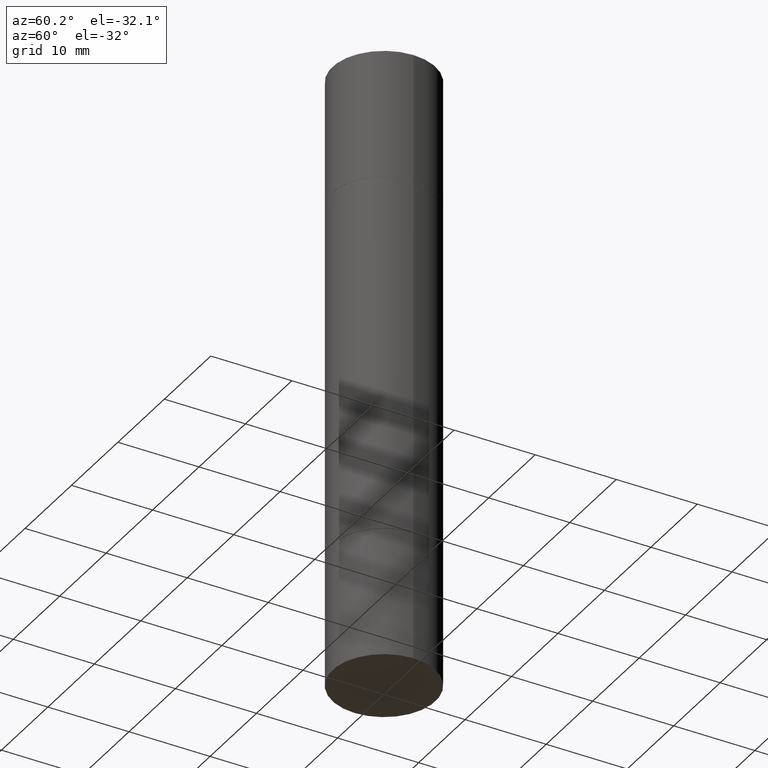
[diagram: clean part render]
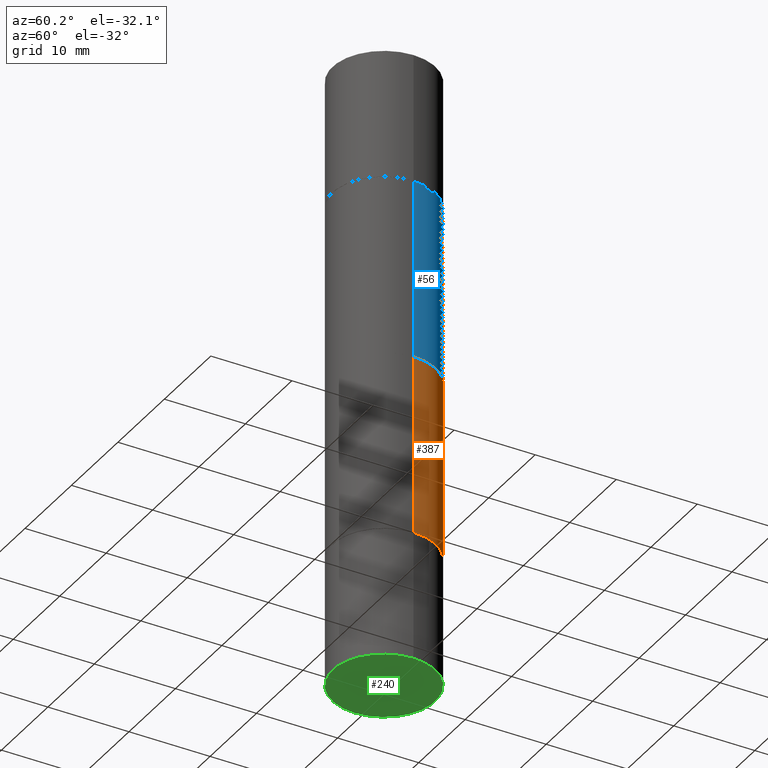
[diagram: same view with three faces highlighted in distinct colors, each labeled with its STEP entity id]
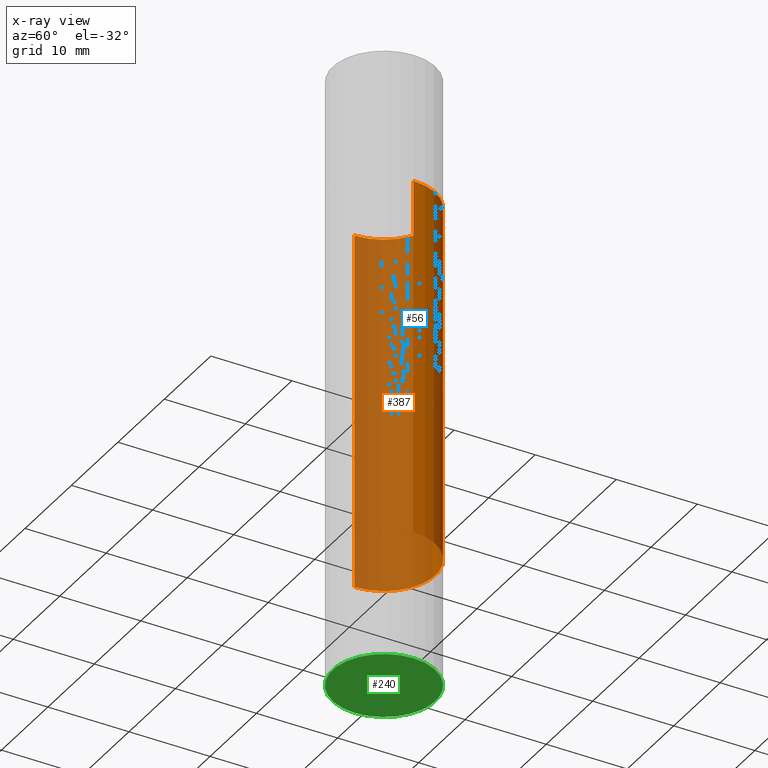
[diagram: x-ray of the same camera — body ghosted, the three highlighted faces saturated]
A machine part, auxiliary view with three faces highlighted in distinct colors.
The next image is the same camera in x-ray (body ghosted, the three faces saturated) — at least one of them is partly hidden behind the body in this view.
Their STEP definitions:

[orange] entity #387 — the highlighted cylindrical surface (partial cylindrical patch) has radius 6.35 mm, axis along (-0, -0, -1).
#33 = EDGE_CURVE ( 'NONE', #172, #618, #635, .T. ) ;
#44 = CARTESIAN_POINT ( 'NONE',  ( 0.000000000000000000, -1.047655762559234344E-14, -2.999999999999999112 ) ) ;
#48 = FACE_OUTER_BOUND ( 'NONE', #160, .T. ) ;
#80 = DIRECTION ( 'NONE',  ( -2.445468806185136877E-29, -3.492890411551753071E-15, -1.000000000000000000 ) ) ;
#113 = ORIENTED_EDGE ( 'NONE', *, *, #33, .F. ) ;
#130 = CARTESIAN_POINT ( 'NONE',  ( -0.2500000000000000000, -4.693112891255996450E-16, -0.6259999999999990017 ) ) ;
#143 = VERTEX_POINT ( 'NONE', #541 ) ;
#160 = EDGE_LOOP ( 'NONE', ( #113, #403, #468, #253 ) ) ;
#164 = CARTESIAN_POINT ( 'NONE',  ( 5.805542945883514935E-29, -8.288776698413628688E-15, -2.374000000000000110 ) ) ;
#172 = VERTEX_POINT ( 'NONE', #130 ) ;
#198 = CARTESIAN_POINT ( 'NONE',  ( 0.2500000000000000000, -1.003451736783519537E-14, -2.374000000000000110 ) ) ;
#225 = EDGE_CURVE ( 'NONE', #143, #172, #561, .T. ) ;
#253 = ORIENTED_EDGE ( 'NONE', *, *, #413, .T. ) ;
#256 = DIRECTION ( 'NONE',  ( -2.445468806185136877E-29, -3.492890411551753071E-15, -1.000000000000000000 ) ) ;
#347 = AXIS2_PLACEMENT_3D ( 'NONE', #164, #507, #348 ) ;
#348 = DIRECTION ( 'NONE',  ( 1.000000000000000000, -6.982962677686266711E-15, 0.000000000000000000 ) ) ;
#361 = CYLINDRICAL_SURFACE ( 'NONE', #645, 0.2499999999999998335 ) ;
#370 = DIRECTION ( 'NONE',  ( 2.445468806185136597E-29, 3.492890411551752677E-15, 1.000000000000000000 ) ) ;
#371 = AXIS2_PLACEMENT_3D ( 'NONE', #551, #370, #438 ) ;
#387 = ADVANCED_FACE ( 'NONE', ( #48 ), #361, .T. ) ;
#390 = VECTOR ( 'NONE', #256, 39.37007874015748143 ) ;
#403 = ORIENTED_EDGE ( 'NONE', *, *, #225, .F. ) ;
#413 = EDGE_CURVE ( 'NONE', #444, #618, #665, .T. ) ;
#438 = DIRECTION ( 'NONE',  ( 1.000000000000000000, -6.982962677686266711E-15, 0.000000000000000000 ) ) ;
#444 = VERTEX_POINT ( 'NONE', #198 ) ;
#447 = VECTOR ( 'NONE', #80, 39.37007874015748143 ) ;
#468 = ORIENTED_EDGE ( 'NONE', *, *, #634, .T. ) ;
#507 = DIRECTION ( 'NONE',  ( -2.445468806185136597E-29, 3.491481338843145583E-15, 1.000000000000000000 ) ) ;
#541 = CARTESIAN_POINT ( 'NONE',  ( 0.2500000000000000000, -3.930176457990049608E-15, -0.6259999999999990017 ) ) ;
#546 = LINE ( 'NONE', #550, #447 ) ;
#550 = CARTESIAN_POINT ( 'NONE',  ( 0.2499999999999998335, -1.222229829501391012E-14, -2.999999999999999112 ) ) ;
#551 = CARTESIAN_POINT ( 'NONE',  ( 5.805542945883514935E-29, -2.184435788568482141E-15, -0.6259999999999990017 ) ) ;
#561 = CIRCLE ( 'NONE', #371, 0.2500000000000000000 ) ;
#598 = CARTESIAN_POINT ( 'NONE',  ( -0.2500000000000000000, -3.522097508821832131E-15, -2.374000000000000110 ) ) ;
#618 = VERTEX_POINT ( 'NONE', #598 ) ;
#620 = DIRECTION ( 'NONE',  ( -2.445468806185136597E-29, -3.492890411551752677E-15, -1.000000000000000000 ) ) ;
#622 = CARTESIAN_POINT ( 'NONE',  ( -0.2499999999999998335, -8.761433126149462132E-15, -2.999999999999999112 ) ) ;
#634 = EDGE_CURVE ( 'NONE', #143, #444, #546, .T. ) ;
#635 = LINE ( 'NONE', #622, #390 ) ;
#645 = AXIS2_PLACEMENT_3D ( 'NONE', #44, #620, #667 ) ;
#665 = CIRCLE ( 'NONE', #347, 0.2500000000000000000 ) ;
#667 = DIRECTION ( 'NONE',  ( 1.000000000000000000, -6.982962677686267499E-15, 0.000000000000000000 ) ) ;

[blue] entity #56 — the highlighted cylindrical surface (partial cylindrical patch) has radius 6.35 mm, axis along (-0, -0, -1).
#10 = VERTEX_POINT ( 'NONE', #579 ) ;
#19 = AXIS2_PLACEMENT_3D ( 'NONE', #22, #537, #76 ) ;
#22 = CARTESIAN_POINT ( 'NONE',  ( 3.668203209277703774E-29, -5.237222008264716599E-15, -1.499999999999999556 ) ) ;
#29 = EDGE_CURVE ( 'NONE', #651, #342, #630, .T. ) ;
#56 = ADVANCED_FACE ( 'NONE', ( #459 ), #166, .T. ) ;
#76 = DIRECTION ( 'NONE',  ( 0.000000000000000000, 1.000000000000000000, -3.278217592397118229E-15 ) ) ;
#151 = CARTESIAN_POINT ( 'NONE',  ( 5.805542945883514935E-29, -2.184435788568482141E-15, -0.6259999999999990017 ) ) ;
#159 = EDGE_LOOP ( 'NONE', ( #615, #640, #300, #358 ) ) ;
#166 = CYLINDRICAL_SURFACE ( 'NONE', #662, 0.2499999999999998335 ) ;
#243 = AXIS2_PLACEMENT_3D ( 'NONE', #151, #414, #458 ) ;
#269 = EDGE_CURVE ( 'NONE', #463, #10, #498, .T. ) ;
#298 = CARTESIAN_POINT ( 'NONE',  ( 0.2500000000000000000, -3.930176457990049608E-15, -0.6259999999999990017 ) ) ;
#300 = ORIENTED_EDGE ( 'NONE', *, *, #269, .T. ) ;
#308 = DIRECTION ( 'NONE',  ( -2.445468806185136597E-29, -3.492890411551752677E-15, -1.000000000000000000 ) ) ;
#333 = EDGE_CURVE ( 'NONE', #463, #651, #542, .T. ) ;
#342 = VERTEX_POINT ( 'NONE', #462 ) ;
#357 = DIRECTION ( 'NONE',  ( -2.445468806185136877E-29, -3.492890411551753071E-15, -1.000000000000000000 ) ) ;
#358 = ORIENTED_EDGE ( 'NONE', *, *, #505, .F. ) ;
#384 = CARTESIAN_POINT ( 'NONE',  ( -0.2500000000000000000, -4.693112891255996450E-16, -0.6259999999999990017 ) ) ;
#402 = CARTESIAN_POINT ( 'NONE',  ( -0.2499999999999998335, -8.761433126149462132E-15, -2.999999999999999112 ) ) ;
#414 = DIRECTION ( 'NONE',  ( 2.445468806185136597E-29, 3.492890411551752677E-15, 1.000000000000000000 ) ) ;
#427 = CIRCLE ( 'NONE', #19, 0.2499999999999998335 ) ;
#458 = DIRECTION ( 'NONE',  ( 1.000000000000000000, -6.982962677686266711E-15, 0.000000000000000000 ) ) ;
#459 = FACE_OUTER_BOUND ( 'NONE', #159, .T. ) ;
#462 = CARTESIAN_POINT ( 'NONE',  ( -0.2499999999999998335, -1.995704398973716874E-15, -1.499999999999999556 ) ) ;
#463 = VERTEX_POINT ( 'NONE', #298 ) ;
#484 = VECTOR ( 'NONE', #493, 39.37007874015748143 ) ;
#493 = DIRECTION ( 'NONE',  ( -2.445468806185136877E-29, -3.492890411551753071E-15, -1.000000000000000000 ) ) ;
#498 = LINE ( 'NONE', #661, #484 ) ;
#505 = EDGE_CURVE ( 'NONE', #342, #10, #427, .T. ) ;
#520 = DIRECTION ( 'NONE',  ( 1.000000000000000000, -6.982962677686267499E-15, 0.000000000000000000 ) ) ;
#537 = DIRECTION ( 'NONE',  ( -0.000000000000000000, -3.492185875197449130E-15, -1.000000000000000000 ) ) ;
#542 = CIRCLE ( 'NONE', #243, 0.2500000000000000000 ) ;
#579 = CARTESIAN_POINT ( 'NONE',  ( 0.2499999999999998335, -5.456569567838164864E-15, -1.499999999999999556 ) ) ;
#615 = ORIENTED_EDGE ( 'NONE', *, *, #29, .F. ) ;
#630 = LINE ( 'NONE', #402, #654 ) ;
#640 = ORIENTED_EDGE ( 'NONE', *, *, #333, .F. ) ;
#651 = VERTEX_POINT ( 'NONE', #384 ) ;
#654 = VECTOR ( 'NONE', #357, 39.37007874015748143 ) ;
#661 = CARTESIAN_POINT ( 'NONE',  ( 0.2499999999999998335, -1.222229829501391012E-14, -2.999999999999999112 ) ) ;
#662 = AXIS2_PLACEMENT_3D ( 'NONE', #675, #308, #520 ) ;
#675 = CARTESIAN_POINT ( 'NONE',  ( 0.000000000000000000, -1.047655762559234344E-14, -2.999999999999999112 ) ) ;

[green] entity #240 — the highlighted planar face has unit normal (0, -0, -1).
#43 = EDGE_CURVE ( 'NONE', #219, #55, #285, .T. ) ;
#55 = VERTEX_POINT ( 'NONE', #299 ) ;
#86 = AXIS2_PLACEMENT_3D ( 'NONE', #260, #471, #188 ) ;
#117 = DIRECTION ( 'NONE',  ( 1.000000000000000000, -6.982962677686262766E-15, 0.000000000000000000 ) ) ;
#123 = EDGE_CURVE ( 'NONE', #55, #219, #470, .T. ) ;
#157 = CARTESIAN_POINT ( 'NONE',  ( 7.336406418555409790E-29, -1.047444401652943635E-14, -3.000000000000000444 ) ) ;
#161 = AXIS2_PLACEMENT_3D ( 'NONE', #376, #589, #585 ) ;
#177 = PLANE ( 'NONE',  #161 ) ;
#188 = DIRECTION ( 'NONE',  ( 1.000000000000000000, -6.982962677686262766E-15, 0.000000000000000000 ) ) ;
#210 = EDGE_LOOP ( 'NONE', ( #517, #593 ) ) ;
#219 = VERTEX_POINT ( 'NONE', #423 ) ;
#240 = ADVANCED_FACE ( 'NONE', ( #478 ), #177, .T. ) ;
#260 = CARTESIAN_POINT ( 'NONE',  ( 7.336406418555409790E-29, -1.047444401652943635E-14, -3.000000000000000444 ) ) ;
#285 = CIRCLE ( 'NONE', #337, 0.2500000000000000000 ) ;
#299 = CARTESIAN_POINT ( 'NONE',  ( -0.2500000000000000000, -7.606999258740704349E-15, -3.000000000000000444 ) ) ;
#337 = AXIS2_PLACEMENT_3D ( 'NONE', #157, #406, #117 ) ;
#376 = CARTESIAN_POINT ( 'NONE',  ( 1.745740669421639647E-15, 0.2499999999999895084, -3.000000000000001332 ) ) ;
#406 = DIRECTION ( 'NONE',  ( -2.445468806185136597E-29, 3.491481338843145583E-15, 1.000000000000000000 ) ) ;
#423 = CARTESIAN_POINT ( 'NONE',  ( 0.2500000000000000000, -1.222018468595100303E-14, -3.000000000000000444 ) ) ;
#470 = CIRCLE ( 'NONE', #86, 0.2500000000000000000 ) ;
#471 = DIRECTION ( 'NONE',  ( -2.445468806185136597E-29, 3.491481338843145583E-15, 1.000000000000000000 ) ) ;
#478 = FACE_OUTER_BOUND ( 'NONE', #210, .T. ) ;
#517 = ORIENTED_EDGE ( 'NONE', *, *, #43, .F. ) ;
#585 = DIRECTION ( 'NONE',  ( -1.000000000000000000, 6.982962677686265922E-15, -4.876176775795935793E-29 ) ) ;
#589 = DIRECTION ( 'NONE',  ( 2.438088387897960049E-29, -3.491481338843145188E-15, -1.000000000000000000 ) ) ;
#593 = ORIENTED_EDGE ( 'NONE', *, *, #123, .F. ) ;